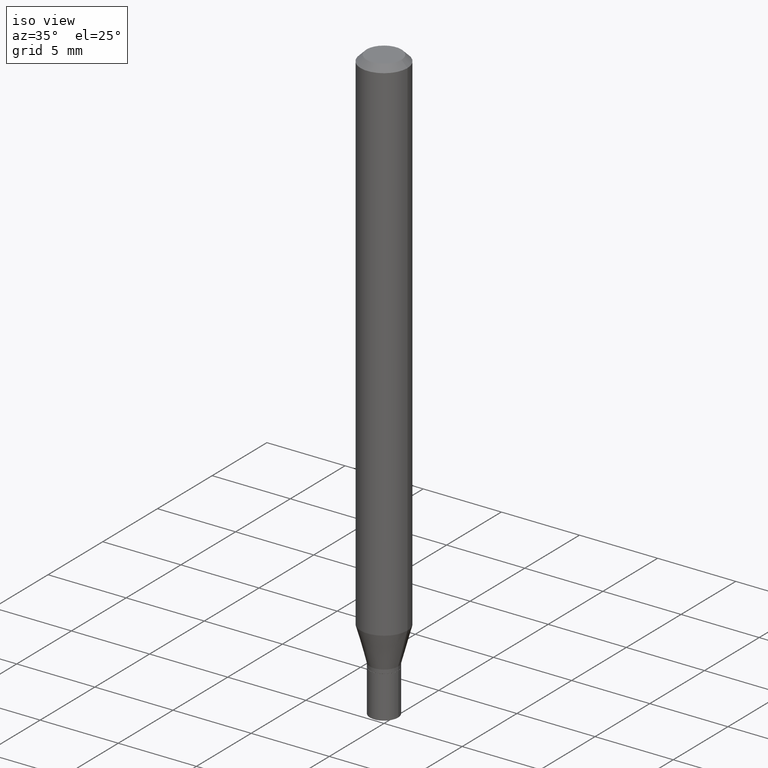
[diagram: clean part render]
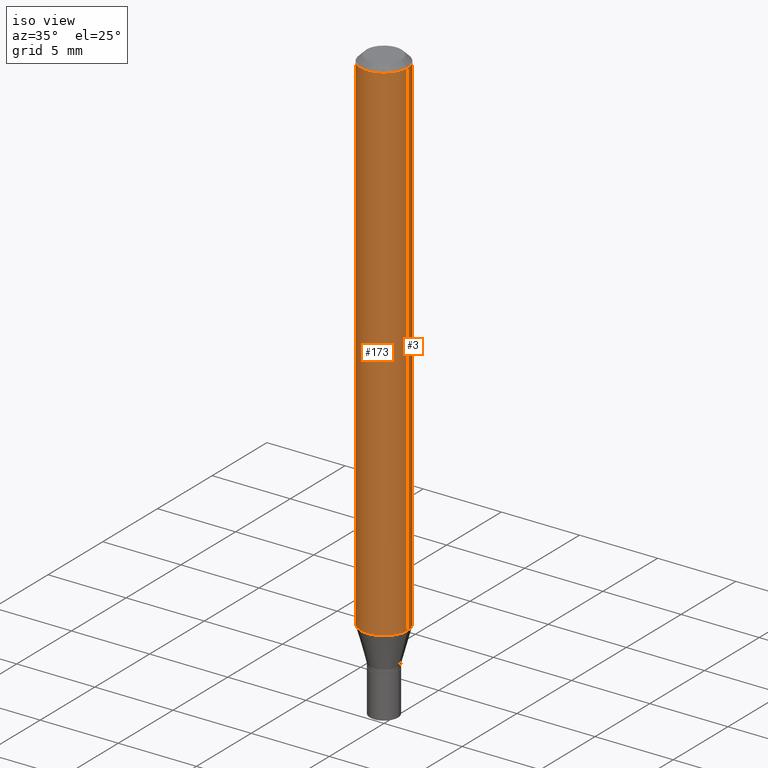
[diagram: same view with one multi-face feature highlighted, each face labeled with its STEP entity id]
A machine part, iso view. The highlighted faces form ONE feature: a constant-radius fillet chain: 2 tangent blend faces with common blend radius 1.4999 mm. The faces share edges in the B-rep.
Their STEP definitions:
[1] entity #173 (Cylinder):
#2 = CARTESIAN_POINT ( 'NONE',  ( -0.05904999999999999832, -4.104070139385231647E-15, -1.295623600941375297 ) ) ;
#20 = DIRECTION ( 'NONE',  ( 1.000000000000000000, -6.982962677686266711E-15, 4.876176775795936353E-29 ) ) ;
#28 = VECTOR ( 'NONE', #367, 39.37007874015748143 ) ;
#55 = FACE_OUTER_BOUND ( 'NONE', #65, .T. ) ;
#62 = ORIENTED_EDGE ( 'NONE', *, *, #70, .T. ) ;
#65 = EDGE_LOOP ( 'NONE', ( #461, #386, #62, #352 ) ) ;
#70 = EDGE_CURVE ( 'NONE', #447, #360, #158, .T. ) ;
#92 = DIRECTION ( 'NONE',  ( -2.445468806185136597E-29, 3.491481338843145583E-15, 1.000000000000000000 ) ) ;
#112 = DIRECTION ( 'NONE',  ( -2.445468806185136877E-29, 3.491481338843145188E-15, 1.000000000000000000 ) ) ;
#119 = EDGE_CURVE ( 'NONE', #323, #217, #296, .T. ) ;
#126 = DIRECTION ( 'NONE',  ( -2.445468806185136597E-29, 3.491481338843145583E-15, 1.000000000000000000 ) ) ;
#155 = CARTESIAN_POINT ( 'NONE',  ( -0.05904999999999999832, 4.195754854663391478E-16, -2.904631170795521892E-30 ) ) ;
#158 = LINE ( 'NONE', #439, #28 ) ;
#163 = CIRCLE ( 'NONE', #236, 0.05904999999999999832 ) ;
#173 = ADVANCED_FACE ( 'NONE', ( #55 ), #416, .T. ) ;
#183 = DIRECTION ( 'NONE',  ( 1.000000000000000000, -6.982962677686266711E-15, 0.000000000000000000 ) ) ;
#202 = CARTESIAN_POINT ( 'NONE',  ( 0.000000000000000000, 0.000000000000000000, 0.000000000000000000 ) ) ;
#207 = CARTESIAN_POINT ( 'NONE',  ( 0.05904999999999999832, -4.647161662000212105E-16, -0.01499999999999999944 ) ) ;
#208 = EDGE_CURVE ( 'NONE', #323, #447, #163, .T. ) ;
#217 = VERTEX_POINT ( 'NONE', #311 ) ;
#236 = AXIS2_PLACEMENT_3D ( 'NONE', #444, #126, #376 ) ;
#257 = AXIS2_PLACEMENT_3D ( 'NONE', #355, #359, #183 ) ;
#285 = CARTESIAN_POINT ( 'NONE',  ( 0.05904999999999999832, -4.935989570968945271E-15, -1.295623600941375297 ) ) ;
#296 = LINE ( 'NONE', #155, #406 ) ;
#311 = CARTESIAN_POINT ( 'NONE',  ( -0.05904999999999999832, -1.868433437000769814E-15, -0.01499999999999999944 ) ) ;
#323 = VERTEX_POINT ( 'NONE', #2 ) ;
#341 = EDGE_CURVE ( 'NONE', #217, #360, #457, .T. ) ;
#352 = ORIENTED_EDGE ( 'NONE', *, *, #341, .F. ) ;
#355 = CARTESIAN_POINT ( 'NONE',  ( 3.668203209277705088E-31, -5.237222008264718399E-17, -0.01499999999999999944 ) ) ;
#359 = DIRECTION ( 'NONE',  ( -2.445468806185136597E-29, 3.491481338843145583E-15, 1.000000000000000000 ) ) ;
#360 = VERTEX_POINT ( 'NONE', #207 ) ;
#367 = DIRECTION ( 'NONE',  ( -2.445468806185136877E-29, 3.491481338843145188E-15, 1.000000000000000000 ) ) ;
#376 = DIRECTION ( 'NONE',  ( 1.000000000000000000, -6.982962677686273021E-15, 0.000000000000000000 ) ) ;
#386 = ORIENTED_EDGE ( 'NONE', *, *, #208, .T. ) ;
#399 = AXIS2_PLACEMENT_3D ( 'NONE', #202, #92, #20 ) ;
#406 = VECTOR ( 'NONE', #112, 39.37007874015748143 ) ;
#416 = CYLINDRICAL_SURFACE ( 'NONE', #399, 0.05904999999999999832 ) ;
#439 = CARTESIAN_POINT ( 'NONE',  ( 0.05904999999999999832, -4.123439461173740327E-16, 2.879382386107500220E-30 ) ) ;
#444 = CARTESIAN_POINT ( 'NONE',  ( 3.168407100659392834E-29, -4.523645624851571140E-15, -1.295623600941375297 ) ) ;
#447 = VERTEX_POINT ( 'NONE', #285 ) ;
#457 = CIRCLE ( 'NONE', #257, 0.05904999999999999832 ) ;
#461 = ORIENTED_EDGE ( 'NONE', *, *, #119, .F. ) ;
[2] entity #3 (Cylinder):
#2 = CARTESIAN_POINT ( 'NONE',  ( -0.05904999999999999832, -4.104070139385231647E-15, -1.295623600941375297 ) ) ;
#3 = ADVANCED_FACE ( 'NONE', ( #177 ), #139, .T. ) ;
#16 = DIRECTION ( 'NONE',  ( 1.000000000000000000, -6.982962677686273021E-15, 0.000000000000000000 ) ) ;
#26 = CARTESIAN_POINT ( 'NONE',  ( 3.668203209277705088E-31, -5.237222008264718399E-17, -0.01499999999999999944 ) ) ;
#28 = VECTOR ( 'NONE', #367, 39.37007874015748143 ) ;
#30 = CIRCLE ( 'NONE', #113, 0.05904999999999999832 ) ;
#70 = EDGE_CURVE ( 'NONE', #447, #360, #158, .T. ) ;
#93 = ORIENTED_EDGE ( 'NONE', *, *, #402, .F. ) ;
#100 = DIRECTION ( 'NONE',  ( -2.445468806185136597E-29, 3.491481338843145583E-15, 1.000000000000000000 ) ) ;
#112 = DIRECTION ( 'NONE',  ( -2.445468806185136877E-29, 3.491481338843145188E-15, 1.000000000000000000 ) ) ;
#113 = AXIS2_PLACEMENT_3D ( 'NONE', #26, #220, #361 ) ;
#119 = EDGE_CURVE ( 'NONE', #323, #217, #296, .T. ) ;
#139 = CYLINDRICAL_SURFACE ( 'NONE', #280, 0.05904999999999999832 ) ;
#155 = CARTESIAN_POINT ( 'NONE',  ( -0.05904999999999999832, 4.195754854663391478E-16, -2.904631170795521892E-30 ) ) ;
#158 = LINE ( 'NONE', #439, #28 ) ;
#168 = EDGE_CURVE ( 'NONE', #447, #323, #185, .T. ) ;
#177 = FACE_OUTER_BOUND ( 'NONE', #312, .T. ) ;
#185 = CIRCLE ( 'NONE', #274, 0.05904999999999999832 ) ;
#207 = CARTESIAN_POINT ( 'NONE',  ( 0.05904999999999999832, -4.647161662000212105E-16, -0.01499999999999999944 ) ) ;
#217 = VERTEX_POINT ( 'NONE', #311 ) ;
#220 = DIRECTION ( 'NONE',  ( -2.445468806185136597E-29, 3.491481338843145583E-15, 1.000000000000000000 ) ) ;
#246 = DIRECTION ( 'NONE',  ( 1.000000000000000000, -6.982962677686266711E-15, 4.876176775795936353E-29 ) ) ;
#272 = CARTESIAN_POINT ( 'NONE',  ( 3.168407100659392834E-29, -4.523645624851571140E-15, -1.295623600941375297 ) ) ;
#274 = AXIS2_PLACEMENT_3D ( 'NONE', #272, #275, #16 ) ;
#275 = DIRECTION ( 'NONE',  ( -2.445468806185136597E-29, 3.491481338843145583E-15, 1.000000000000000000 ) ) ;
#280 = AXIS2_PLACEMENT_3D ( 'NONE', #284, #100, #246 ) ;
#284 = CARTESIAN_POINT ( 'NONE',  ( 0.000000000000000000, 0.000000000000000000, 0.000000000000000000 ) ) ;
#285 = CARTESIAN_POINT ( 'NONE',  ( 0.05904999999999999832, -4.935989570968945271E-15, -1.295623600941375297 ) ) ;
#293 = ORIENTED_EDGE ( 'NONE', *, *, #70, .F. ) ;
#296 = LINE ( 'NONE', #155, #406 ) ;
#311 = CARTESIAN_POINT ( 'NONE',  ( -0.05904999999999999832, -1.868433437000769814E-15, -0.01499999999999999944 ) ) ;
#312 = EDGE_LOOP ( 'NONE', ( #362, #319, #93, #293 ) ) ;
#319 = ORIENTED_EDGE ( 'NONE', *, *, #119, .T. ) ;
#323 = VERTEX_POINT ( 'NONE', #2 ) ;
#360 = VERTEX_POINT ( 'NONE', #207 ) ;
#361 = DIRECTION ( 'NONE',  ( 1.000000000000000000, -6.982962677686266711E-15, 0.000000000000000000 ) ) ;
#362 = ORIENTED_EDGE ( 'NONE', *, *, #168, .T. ) ;
#367 = DIRECTION ( 'NONE',  ( -2.445468806185136877E-29, 3.491481338843145188E-15, 1.000000000000000000 ) ) ;
#402 = EDGE_CURVE ( 'NONE', #360, #217, #30, .T. ) ;
#406 = VECTOR ( 'NONE', #112, 39.37007874015748143 ) ;
#439 = CARTESIAN_POINT ( 'NONE',  ( 0.05904999999999999832, -4.123439461173740327E-16, 2.879382386107500220E-30 ) ) ;
#447 = VERTEX_POINT ( 'NONE', #285 ) ;